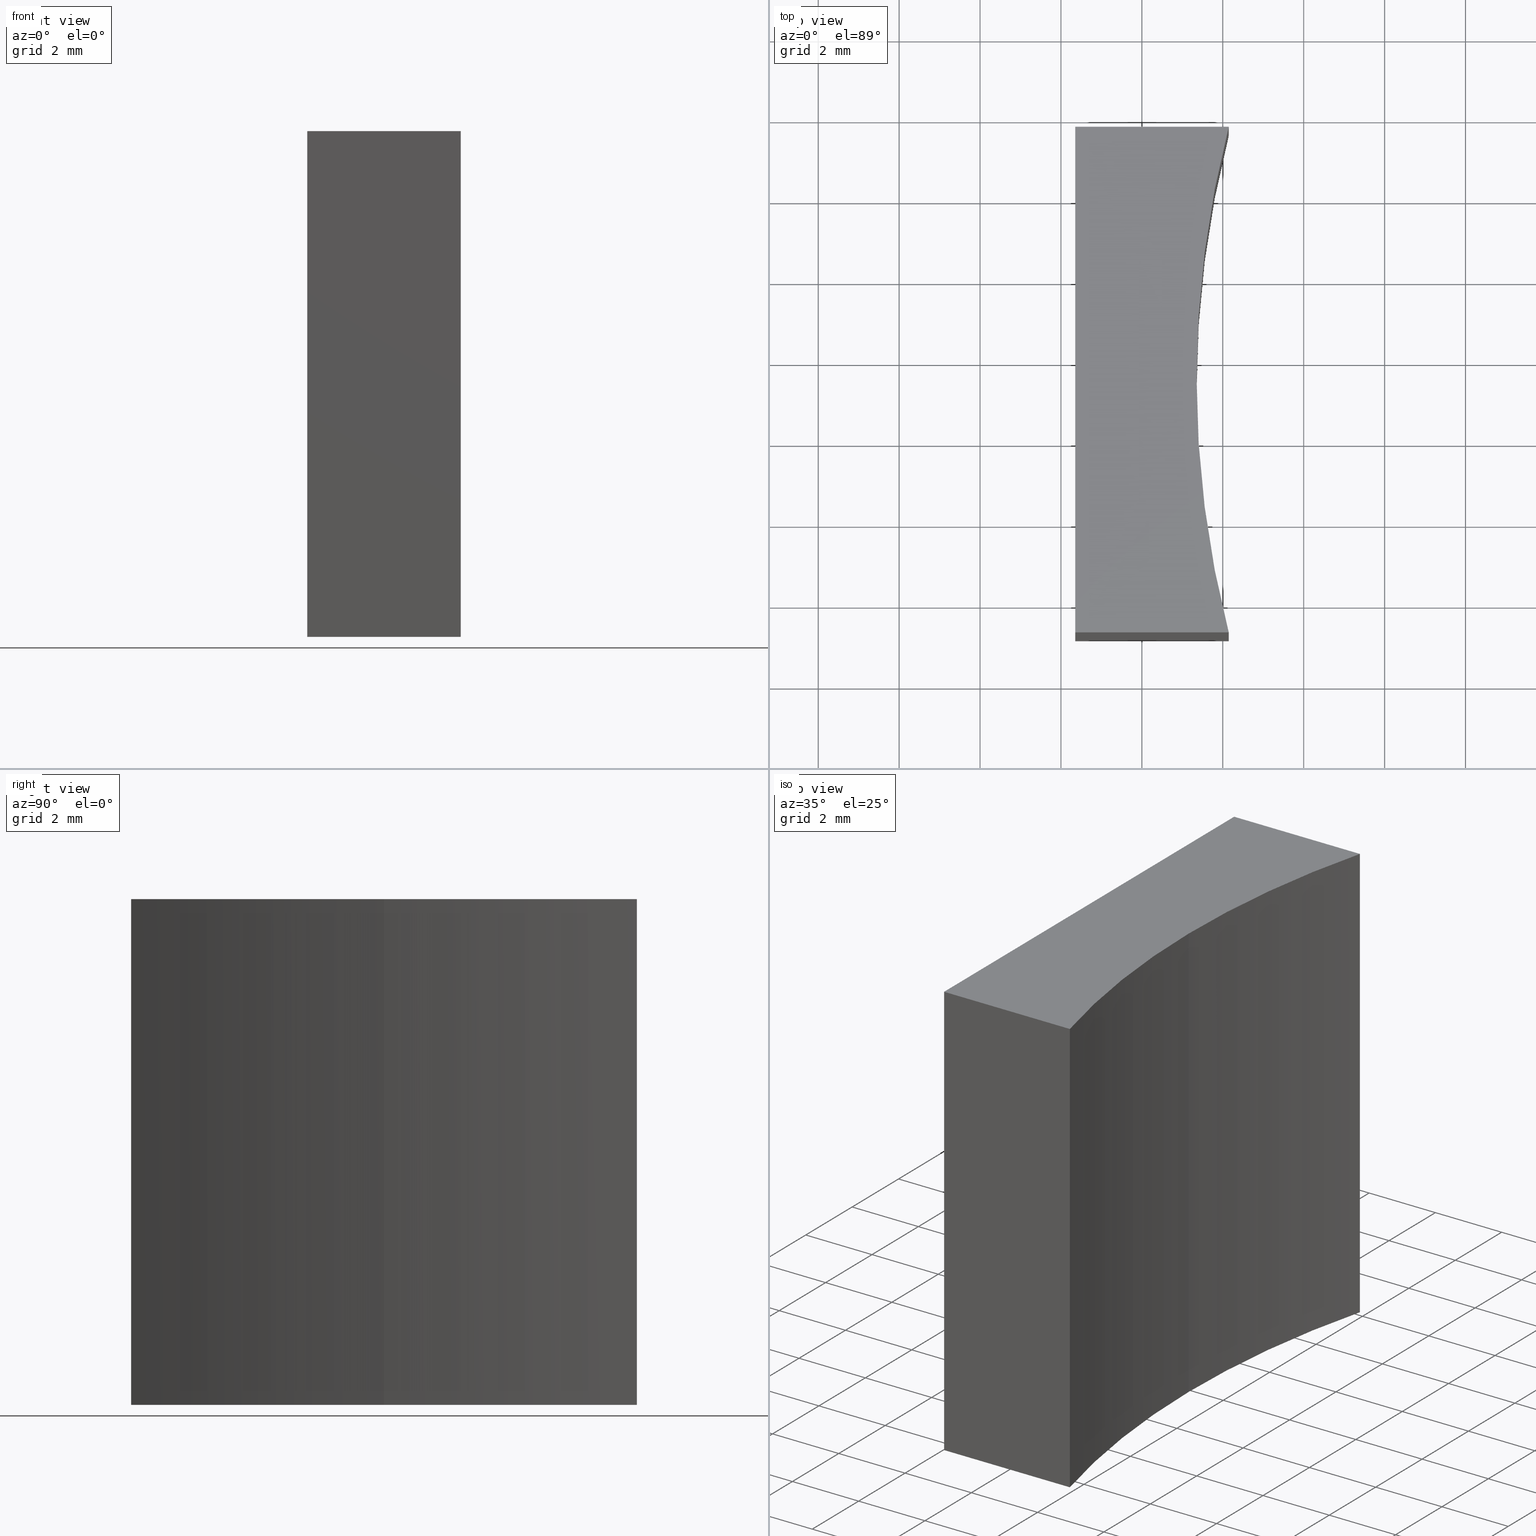
[diagram: canonical four-view strip — front | top / right | iso, engineering-drawing reading convention]
A machine part, canonical four-view strip (front | top / right | iso — engineering-drawing reading convention). The complete STEP part file that produces these views, byte-faithful:
ISO-10303-21;
HEADER;
FILE_DESCRIPTION (( 'STEP AP214' ),
    '1' );
FILE_NAME ('280004.STEP',
    '2019-08-08T01:51:03',
    ( '' ),
    ( '' ),
    'SwSTEP 2.0',
    'SolidWorks 2016',
    '' );
FILE_SCHEMA (( 'AUTOMOTIVE_DESIGN' ));
ENDSEC;

DATA;
#1 = VERTEX_POINT ( 'NONE', #205 ) ;
#2 = CYLINDRICAL_SURFACE ( 'NONE', #114, 24.99999999999996800 ) ;
#3 = ORIENTED_EDGE ( 'NONE', *, *, #163, .T. ) ;
#4 = AXIS2_PLACEMENT_3D ( 'NONE', #96, #100, #116 ) ;
#5 = EDGE_CURVE ( 'NONE', #148, #63, #108, .T. ) ;
#6 = ORIENTED_EDGE ( 'NONE', *, *, #234, .F. ) ;
#7 = CARTESIAN_POINT ( 'NONE',  ( 146.1474219018447200, 27.17896463388354900, 12.50000000000000000 ) ) ;
#8 = EDGE_LOOP ( 'NONE', ( #152, #190, #146, #3, #221 ) ) ;
#9 = DIRECTION ( 'NONE',  ( -0.0000000000000000000, -1.000000000000000000, -0.0000000000000000000 ) ) ;
#10 = CARTESIAN_POINT ( 'NONE',  ( 146.1474219018447200, 27.17896463388355200, 0.0000000000000000000 ) ) ;
#11 = DIRECTION ( 'NONE',  ( 0.0000000000000000000, 0.0000000000000000000, 1.000000000000000000 ) ) ;
#12 = ORIENTED_EDGE ( 'NONE', *, *, #22, .T. ) ;
#13 = ADVANCED_FACE ( 'NONE', ( #28 ), #161, .F. ) ;
#14 = FILL_AREA_STYLE_COLOUR ( '', #15 ) ;
#15 = COLOUR_RGB ( '',1.000000000000000000, 1.000000000000000000, 1.000000000000000000 ) ;
#16 = DIRECTION ( 'NONE',  ( 1.000000000000000000, 0.0000000000000000000, 0.0000000000000000000 ) ) ;
#17 = DIRECTION ( 'NONE',  ( 0.0000000000000000000, 0.0000000000000000000, 1.000000000000000000 ) ) ;
#18 = ORIENTED_EDGE ( 'NONE', *, *, #50, .T. ) ;
#19 = LINE ( 'NONE', #182, #33 ) ;
#20 = STYLED_ITEM ( 'NONE', ( #59 ), #219 ) ;
#21 = PRODUCT ( '280004', '280004', '', ( #31 ) ) ;
#22 = EDGE_CURVE ( 'NONE', #131, #127, #37, .T. ) ;
#23 = EDGE_LOOP ( 'NONE', ( #99, #157, #201, #236 ) ) ;
#24 = PLANE ( 'NONE',  #126 ) ;
#25 = VECTOR ( 'NONE', #167, 1000.000000000000000 ) ;
#26 = CARTESIAN_POINT ( 'NONE',  ( 170.3535678156410400, 33.42896463388354500, 12.50000000000000000 ) ) ;
#27 = AXIS2_PLACEMENT_3D ( 'NONE', #75, #118, #200 ) ;
#28 = FACE_OUTER_BOUND ( 'NONE', #53, .T. ) ;
#29 = CARTESIAN_POINT ( 'NONE',  ( 170.3535678156410400, 33.42896463388354500, 12.50000000000000000 ) ) ;
#30 = FILL_AREA_STYLE_COLOUR ( '', #55 ) ;
#31 = PRODUCT_CONTEXT ( 'NONE', #154, 'mechanical' ) ;
#32 = SURFACE_STYLE_USAGE ( .BOTH. , #218 ) ;
#33 = VECTOR ( 'NONE', #229, 1000.000000000000000 ) ;
#34 = AXIS2_PLACEMENT_3D ( 'NONE', #82, #145, #175 ) ;
#35 = LINE ( 'NONE', #110, #134 ) ;
#36 = VERTEX_POINT ( 'NONE', #42 ) ;
#37 = LINE ( 'NONE', #125, #124 ) ;
#38 = UNCERTAINTY_MEASURE_WITH_UNIT (LENGTH_MEASURE( 1.000000000000000100E-005 ), #98, 'distance_accuracy_value', 'NONE');
#39 = PRESENTATION_LAYER_ASSIGNMENT (  '', '', ( #20 ) ) ;
#40 = ORIENTED_EDGE ( 'NONE', *, *, #204, .T. ) ;
#41 = SURFACE_STYLE_FILL_AREA ( #97 ) ;
#42 = CARTESIAN_POINT ( 'NONE',  ( 146.1474219018447200, 27.17896463388355200, 12.50000000000000000 ) ) ;
#43 = DIRECTION ( 'NONE',  ( -1.000000000000000000, 0.0000000000000000000, 0.0000000000000000000 ) ) ;
#44 =( GEOMETRIC_REPRESENTATION_CONTEXT ( 3 ) GLOBAL_UNCERTAINTY_ASSIGNED_CONTEXT ( ( #38 ) ) GLOBAL_UNIT_ASSIGNED_CONTEXT ( ( #98, #185, #95 ) ) REPRESENTATION_CONTEXT ( 'NONE', 'WORKASPACE' ) );
#45 = VERTEX_POINT ( 'NONE', #64 ) ;
#46 = PLANE ( 'NONE',  #177 ) ;
#47 = PRODUCT_DEFINITION_SHAPE ( 'NONE', 'NONE',  #189 ) ;
#48 = CARTESIAN_POINT ( 'NONE',  ( 142.3535678156410400, 39.67896463388353800, 12.50000000000000000 ) ) ;
#49 = VECTOR ( 'NONE', #225, 1000.000000000000000 ) ;
#50 = EDGE_CURVE ( 'NONE', #36, #173, #212, .T. ) ;
#51 = DIRECTION ( 'NONE',  ( 0.0000000000000000000, -0.0000000000000000000, -1.000000000000000000 ) ) ;
#52 = DIRECTION ( 'NONE',  ( -0.0000000000000000000, -0.0000000000000000000, -1.000000000000000000 ) ) ;
#53 = EDGE_LOOP ( 'NONE', ( #57, #187, #105, #40 ) ) ;
#54 = ADVANCED_FACE ( 'NONE', ( #104 ), #2, .F. ) ;
#55 = COLOUR_RGB ( '',1.000000000000000000, 1.000000000000000000, 1.000000000000000000 ) ;
#56 = LINE ( 'NONE', #67, #25 ) ;
#57 = ORIENTED_EDGE ( 'NONE', *, *, #169, .T. ) ;
#58 =( LENGTH_UNIT ( ) NAMED_UNIT ( * ) SI_UNIT ( .MILLI., .METRE. ) );
#59 = PRESENTATION_STYLE_ASSIGNMENT (( #155 ) ) ;
#60 = VERTEX_POINT ( 'NONE', #66 ) ;
#61 = STYLED_ITEM ( 'NONE', ( #150 ), #156 ) ;
#62 = EDGE_CURVE ( 'NONE', #148, #36, #202, .T. ) ;
#63 = VERTEX_POINT ( 'NONE', #228 ) ;
#64 = CARTESIAN_POINT ( 'NONE',  ( 146.1474219018447200, 39.67896463388353800, 12.50000000000000000 ) ) ;
#65 = DIRECTION ( 'NONE',  ( -0.0000000000000000000, -0.0000000000000000000, -1.000000000000000000 ) ) ;
#66 = CARTESIAN_POINT ( 'NONE',  ( 145.3535678156410700, 33.42896463388354500, 0.0000000000000000000 ) ) ;
#67 = CARTESIAN_POINT ( 'NONE',  ( 142.3535678156410400, 33.42896463388353800, 0.0000000000000000000 ) ) ;
#68 = CARTESIAN_POINT ( 'NONE',  ( 142.3535678156410400, 27.17896463388353800, 12.50000000000000000 ) ) ;
#69 = ADVANCED_FACE ( 'NONE', ( #238 ), #24, .F. ) ;
#70 = CIRCLE ( 'NONE', #132, 24.99999999999996800 ) ;
#71 = AXIS2_PLACEMENT_3D ( 'NONE', #192, #178, #210 ) ;
#72 = CARTESIAN_POINT ( 'NONE',  ( 0.0000000000000000000, 0.0000000000000000000, 0.0000000000000000000 ) ) ;
#73 = ORIENTED_EDGE ( 'NONE', *, *, #81, .F. ) ;
#74 = FILL_AREA_STYLE ('',( #14 ) ) ;
#75 = CARTESIAN_POINT ( 'NONE',  ( 170.3535678156410400, 33.42896463388354500, 12.50000000000000000 ) ) ;
#76 = ORIENTED_EDGE ( 'NONE', *, *, #204, .F. ) ;
#77 = EDGE_CURVE ( 'NONE', #1, #60, #101, .T. ) ;
#78 = VECTOR ( 'NONE', #9, 1000.000000000000000 ) ;
#79 = CLOSED_SHELL ( 'NONE', ( #213, #69, #54, #137, #13, #186, #117 ) ) ;
#80 = EDGE_CURVE ( 'NONE', #36, #1, #143, .T. ) ;
#81 = EDGE_CURVE ( 'NONE', #173, #60, #70, .T. ) ;
#82 = CARTESIAN_POINT ( 'NONE',  ( 142.3535678156410400, 33.42896463388353800, 12.50000000000000000 ) ) ;
#83 = ORIENTED_EDGE ( 'NONE', *, *, #169, .F. ) ;
#84 = DIRECTION ( 'NONE',  ( -0.0000000000000000000, -0.0000000000000000000, -1.000000000000000000 ) ) ;
#85 = FACE_OUTER_BOUND ( 'NONE', #136, .T. ) ;
#86 = CARTESIAN_POINT ( 'NONE',  ( 145.3535678156410700, 33.42896463388354500, 12.50000000000000000 ) ) ;
#87 =( GEOMETRIC_REPRESENTATION_CONTEXT ( 3 ) GLOBAL_UNCERTAINTY_ASSIGNED_CONTEXT ( ( #138 ) ) GLOBAL_UNIT_ASSIGNED_CONTEXT ( ( #198, #216, #197 ) ) REPRESENTATION_CONTEXT ( 'NONE', 'WORKASPACE' ) );
#88 = DIRECTION ( 'NONE',  ( -1.000000000000000000, -0.0000000000000000000, -0.0000000000000000000 ) ) ;
#89 = CIRCLE ( 'NONE', #4, 24.99999999999996800 ) ;
#90 = DIRECTION ( 'NONE',  ( -2.743474213652739600E-015, 1.000000000000000000, 0.0000000000000000000 ) ) ;
#91 = EDGE_CURVE ( 'NONE', #63, #173, #19, .T. ) ;
#92 = DIRECTION ( 'NONE',  ( -0.0000000000000000000, -0.0000000000000000000, -1.000000000000000000 ) ) ;
#93 = DIRECTION ( 'NONE',  ( -0.0000000000000000000, -0.0000000000000000000, -1.000000000000000000 ) ) ;
#94 = ORIENTED_EDGE ( 'NONE', *, *, #81, .T. ) ;
#95 =( NAMED_UNIT ( * ) SI_UNIT ( $, .STERADIAN. ) SOLID_ANGLE_UNIT ( ) );
#96 = CARTESIAN_POINT ( 'NONE',  ( 170.3535678156410400, 33.42896463388354500, 0.0000000000000000000 ) ) ;
#97 = FILL_AREA_STYLE ('',( #30 ) ) ;
#98 =( LENGTH_UNIT ( ) NAMED_UNIT ( * ) SI_UNIT ( .MILLI., .METRE. ) );
#99 = ORIENTED_EDGE ( 'NONE', *, *, #163, .F. ) ;
#100 = DIRECTION ( 'NONE',  ( -0.0000000000000000000, -0.0000000000000000000, -1.000000000000000000 ) ) ;
#101 = LINE ( 'NONE', #86, #232 ) ;
#102 = VERTEX_POINT ( 'NONE', #214 ) ;
#103 = EDGE_CURVE ( 'NONE', #45, #102, #188, .T. ) ;
#104 = FACE_OUTER_BOUND ( 'NONE', #176, .T. ) ;
#105 = ORIENTED_EDGE ( 'NONE', *, *, #195, .F. ) ;
#106 = ORIENTED_EDGE ( 'NONE', *, *, #80, .F. ) ;
#107 = CARTESIAN_POINT ( 'NONE',  ( 146.1474219018447200, 27.17896463388355200, 12.50000000000000000 ) ) ;
#108 = LINE ( 'NONE', #109, #49 ) ;
#109 = CARTESIAN_POINT ( 'NONE',  ( 142.3535678156410400, 27.17896463388353800, 12.50000000000000000 ) ) ;
#110 = CARTESIAN_POINT ( 'NONE',  ( 146.1474219018447200, 39.67896463388353800, 12.50000000000000000 ) ) ;
#111 = CARTESIAN_POINT ( 'NONE',  ( 146.1474219018447200, 39.67896463388353800, 0.0000000000000000000 ) ) ;
#112 = CARTESIAN_POINT ( 'NONE',  ( 146.1474219018447200, 27.17896463388354900, 12.50000000000000000 ) ) ;
#113 = DIRECTION ( 'NONE',  ( 0.0000000000000000000, -1.000000000000000000, 0.0000000000000000000 ) ) ;
#114 = AXIS2_PLACEMENT_3D ( 'NONE', #164, #65, #43 ) ;
#115 = VECTOR ( 'NONE', #142, 1000.000000000000000 ) ;
#116 = DIRECTION ( 'NONE',  ( 1.000000000000000000, 0.0000000000000000000, 0.0000000000000000000 ) ) ;
#117 = ADVANCED_FACE ( 'NONE', ( #160 ), #166, .F. ) ;
#118 = DIRECTION ( 'NONE',  ( -0.0000000000000000000, -0.0000000000000000000, -1.000000000000000000 ) ) ;
#119 = EDGE_CURVE ( 'NONE', #45, #131, #35, .T. ) ;
#120 = EDGE_LOOP ( 'NONE', ( #220, #83, #140, #6, #73 ) ) ;
#121 = LINE ( 'NONE', #129, #184 ) ;
#122 = ORIENTED_EDGE ( 'NONE', *, *, #103, .F. ) ;
#123 = ORIENTED_EDGE ( 'NONE', *, *, #5, .T. ) ;
#124 = VECTOR ( 'NONE', #128, 1000.000000000000000 ) ;
#125 = CARTESIAN_POINT ( 'NONE',  ( 142.3535678156410400, 39.67896463388353800, 0.0000000000000000000 ) ) ;
#126 = AXIS2_PLACEMENT_3D ( 'NONE', #112, #90, #179 ) ;
#127 = VERTEX_POINT ( 'NONE', #165 ) ;
#128 = DIRECTION ( 'NONE',  ( -1.000000000000000000, -0.0000000000000000000, -0.0000000000000000000 ) ) ;
#129 = CARTESIAN_POINT ( 'NONE',  ( 142.3535678156410400, 39.67896463388353800, 12.50000000000000000 ) ) ;
#130 = DIRECTION ( 'NONE',  ( -0.0000000000000000000, -0.0000000000000000000, -1.000000000000000000 ) ) ;
#131 = VERTEX_POINT ( 'NONE', #111 ) ;
#132 = AXIS2_PLACEMENT_3D ( 'NONE', #194, #130, #233 ) ;
#133 = DIRECTION ( 'NONE',  ( 1.000000000000000000, 0.0000000000000000000, -0.0000000000000000000 ) ) ;
#134 = VECTOR ( 'NONE', #92, 1000.000000000000000 ) ;
#135 = SURFACE_SIDE_STYLE ('',( #162 ) ) ;
#136 = EDGE_LOOP ( 'NONE', ( #12, #76, #122, #168 ) ) ;
#137 = ADVANCED_FACE ( 'NONE', ( #85 ), #46, .F. ) ;
#138 = UNCERTAINTY_MEASURE_WITH_UNIT (LENGTH_MEASURE( 1.000000000000000100E-005 ), #198, 'distance_accuracy_value', 'NONE');
#139 = FACE_OUTER_BOUND ( 'NONE', #23, .T. ) ;
#140 = ORIENTED_EDGE ( 'NONE', *, *, #22, .F. ) ;
#141 = AXIS2_PLACEMENT_3D ( 'NONE', #26, #11, #133 ) ;
#142 = DIRECTION ( 'NONE',  ( 1.000000000000000000, 2.743474213652739600E-015, -0.0000000000000000000 ) ) ;
#143 = CIRCLE ( 'NONE', #144, 24.99999999999996800 ) ;
#144 = AXIS2_PLACEMENT_3D ( 'NONE', #29, #52, #149 ) ;
#145 = DIRECTION ( 'NONE',  ( 1.000000000000000000, 0.0000000000000000000, 0.0000000000000000000 ) ) ;
#146 = ORIENTED_EDGE ( 'NONE', *, *, #80, .T. ) ;
#147 = DIRECTION ( 'NONE',  ( -0.0000000000000000000, -0.0000000000000000000, -1.000000000000000000 ) ) ;
#148 = VERTEX_POINT ( 'NONE', #68 ) ;
#149 = DIRECTION ( 'NONE',  ( 1.000000000000000000, 0.0000000000000000000, 0.0000000000000000000 ) ) ;
#150 = PRESENTATION_STYLE_ASSIGNMENT (( #32 ) ) ;
#151 = DIRECTION ( 'NONE',  ( 1.000000000000000000, 0.0000000000000000000, 0.0000000000000000000 ) ) ;
#152 = ORIENTED_EDGE ( 'NONE', *, *, #195, .T. ) ;
#153 = CARTESIAN_POINT ( 'NONE',  ( 142.3535678156410400, 27.17896463388353800, 12.50000000000000000 ) ) ;
#154 = APPLICATION_CONTEXT ( 'automotive_design' ) ;
#155 = SURFACE_STYLE_USAGE ( .BOTH. , #135 ) ;
#156 = ADVANCED_BREP_SHAPE_REPRESENTATION ( '280004', ( #219, #239 ), #208 ) ;
#157 = ORIENTED_EDGE ( 'NONE', *, *, #77, .T. ) ;
#158 = LINE ( 'NONE', #153, #78 ) ;
#159 = PRODUCT_DEFINITION_CONTEXT ( 'detailed design', #170, 'design' ) ;
#160 = FACE_OUTER_BOUND ( 'NONE', #120, .T. ) ;
#161 = PLANE ( 'NONE',  #34 ) ;
#162 = SURFACE_STYLE_FILL_AREA ( #74 ) ;
#163 = EDGE_CURVE ( 'NONE', #1, #45, #226, .T. ) ;
#164 = CARTESIAN_POINT ( 'NONE',  ( 170.3535678156410400, 33.42896463388354500, 12.50000000000000000 ) ) ;
#165 = CARTESIAN_POINT ( 'NONE',  ( 142.3535678156410400, 39.67896463388353800, 0.0000000000000000000 ) ) ;
#166 = PLANE ( 'NONE',  #71 ) ;
#167 = DIRECTION ( 'NONE',  ( -0.0000000000000000000, -1.000000000000000000, -0.0000000000000000000 ) ) ;
#168 = ORIENTED_EDGE ( 'NONE', *, *, #119, .T. ) ;
#169 = EDGE_CURVE ( 'NONE', #127, #63, #56, .T. ) ;
#170 = APPLICATION_CONTEXT ( 'automotive_design' ) ;
#171 = APPLICATION_PROTOCOL_DEFINITION ( 'draft international standard', 'automotive_design', 1998, #170 ) ;
#172 = APPLICATION_PROTOCOL_DEFINITION ( 'draft international standard', 'automotive_design', 1998, #154 ) ;
#173 = VERTEX_POINT ( 'NONE', #10 ) ;
#174 = EDGE_LOOP ( 'NONE', ( #207, #191, #211, #123 ) ) ;
#175 = DIRECTION ( 'NONE',  ( 0.0000000000000000000, 0.0000000000000000000, -1.000000000000000000 ) ) ;
#176 = EDGE_LOOP ( 'NONE', ( #215, #106, #18, #94 ) ) ;
#177 = AXIS2_PLACEMENT_3D ( 'NONE', #231, #113, #51 ) ;
#178 = DIRECTION ( 'NONE',  ( 0.0000000000000000000, 0.0000000000000000000, 1.000000000000000000 ) ) ;
#179 = DIRECTION ( 'NONE',  ( -1.000000000000000000, -2.743474213652739600E-015, 0.0000000000000000000 ) ) ;
#180 = DIRECTION ( 'NONE',  ( -0.0000000000000000000, -0.0000000000000000000, -1.000000000000000000 ) ) ;
#181 = FACE_OUTER_BOUND ( 'NONE', #8, .T. ) ;
#182 = CARTESIAN_POINT ( 'NONE',  ( 146.1474219018447200, 27.17896463388354900, 0.0000000000000000000 ) ) ;
#183 =( NAMED_UNIT ( * ) PLANE_ANGLE_UNIT ( ) SI_UNIT ( $, .RADIAN. ) );
#184 = VECTOR ( 'NONE', #180, 1000.000000000000000 ) ;
#185 =( NAMED_UNIT ( * ) PLANE_ANGLE_UNIT ( ) SI_UNIT ( $, .RADIAN. ) );
#186 = ADVANCED_FACE ( 'NONE', ( #181 ), #209, .T. ) ;
#187 = ORIENTED_EDGE ( 'NONE', *, *, #5, .F. ) ;
#188 = LINE ( 'NONE', #48, #224 ) ;
#189 = PRODUCT_DEFINITION ( 'δ֪', '', #230, #159 ) ;
#190 = ORIENTED_EDGE ( 'NONE', *, *, #62, .T. ) ;
#191 = ORIENTED_EDGE ( 'NONE', *, *, #50, .F. ) ;
#192 = CARTESIAN_POINT ( 'NONE',  ( 170.3535678156410400, 33.42896463388354500, 0.0000000000000000000 ) ) ;
#193 = VECTOR ( 'NONE', #84, 1000.000000000000000 ) ;
#194 = CARTESIAN_POINT ( 'NONE',  ( 170.3535678156410400, 33.42896463388354500, 0.0000000000000000000 ) ) ;
#195 = EDGE_CURVE ( 'NONE', #102, #148, #158, .T. ) ;
#196 = SHAPE_DEFINITION_REPRESENTATION ( #47, #156 ) ;
#197 =( NAMED_UNIT ( * ) SI_UNIT ( $, .STERADIAN. ) SOLID_ANGLE_UNIT ( ) );
#198 =( LENGTH_UNIT ( ) NAMED_UNIT ( * ) SI_UNIT ( .MILLI., .METRE. ) );
#199 = PRESENTATION_LAYER_ASSIGNMENT (  '', '', ( #61 ) ) ;
#200 = DIRECTION ( 'NONE',  ( -1.000000000000000000, 0.0000000000000000000, 0.0000000000000000000 ) ) ;
#201 = ORIENTED_EDGE ( 'NONE', *, *, #234, .T. ) ;
#202 = LINE ( 'NONE', #7, #115 ) ;
#203 = MECHANICAL_DESIGN_GEOMETRIC_PRESENTATION_REPRESENTATION (  '', ( #20 ), #44 ) ;
#204 = EDGE_CURVE ( 'NONE', #102, #127, #121, .T. ) ;
#205 = CARTESIAN_POINT ( 'NONE',  ( 145.3535678156410700, 33.42896463388354500, 12.50000000000000000 ) ) ;
#206 = CYLINDRICAL_SURFACE ( 'NONE', #27, 24.99999999999996800 ) ;
#207 = ORIENTED_EDGE ( 'NONE', *, *, #91, .T. ) ;
#208 =( GEOMETRIC_REPRESENTATION_CONTEXT ( 3 ) GLOBAL_UNCERTAINTY_ASSIGNED_CONTEXT ( ( #227 ) ) GLOBAL_UNIT_ASSIGNED_CONTEXT ( ( #58, #183, #237 ) ) REPRESENTATION_CONTEXT ( 'NONE', 'WORKASPACE' ) );
#209 = PLANE ( 'NONE',  #141 ) ;
#210 = DIRECTION ( 'NONE',  ( 1.000000000000000000, 0.0000000000000000000, -0.0000000000000000000 ) ) ;
#211 = ORIENTED_EDGE ( 'NONE', *, *, #62, .F. ) ;
#212 = LINE ( 'NONE', #107, #193 ) ;
#213 = ADVANCED_FACE ( 'NONE', ( #139 ), #206, .F. ) ;
#214 = CARTESIAN_POINT ( 'NONE',  ( 142.3535678156410400, 39.67896463388353800, 12.50000000000000000 ) ) ;
#215 = ORIENTED_EDGE ( 'NONE', *, *, #77, .F. ) ;
#216 =( NAMED_UNIT ( * ) PLANE_ANGLE_UNIT ( ) SI_UNIT ( $, .RADIAN. ) );
#217 = AXIS2_PLACEMENT_3D ( 'NONE', #235, #93, #151 ) ;
#218 = SURFACE_SIDE_STYLE ('',( #41 ) ) ;
#219 = MANIFOLD_SOLID_BREP ( '͹̨-����1', #79 ) ;
#220 = ORIENTED_EDGE ( 'NONE', *, *, #91, .F. ) ;
#221 = ORIENTED_EDGE ( 'NONE', *, *, #103, .T. ) ;
#222 = MECHANICAL_DESIGN_GEOMETRIC_PRESENTATION_REPRESENTATION (  '', ( #61 ), #87 ) ;
#223 = PRODUCT_RELATED_PRODUCT_CATEGORY ( 'part', '', ( #21 ) ) ;
#224 = VECTOR ( 'NONE', #88, 1000.000000000000000 ) ;
#225 = DIRECTION ( 'NONE',  ( -0.0000000000000000000, -0.0000000000000000000, -1.000000000000000000 ) ) ;
#226 = CIRCLE ( 'NONE', #217, 24.99999999999996800 ) ;
#227 = UNCERTAINTY_MEASURE_WITH_UNIT (LENGTH_MEASURE( 1.000000000000000100E-005 ), #58, 'distance_accuracy_value', 'NONE');
#228 = CARTESIAN_POINT ( 'NONE',  ( 142.3535678156410400, 27.17896463388353800, 0.0000000000000000000 ) ) ;
#229 = DIRECTION ( 'NONE',  ( 1.000000000000000000, 2.743474213652739600E-015, -0.0000000000000000000 ) ) ;
#230 = PRODUCT_DEFINITION_FORMATION_WITH_SPECIFIED_SOURCE ( '�κ�', '', #21, .NOT_KNOWN. ) ;
#231 = CARTESIAN_POINT ( 'NONE',  ( 142.3535678156410400, 39.67896463388353800, 12.50000000000000000 ) ) ;
#232 = VECTOR ( 'NONE', #147, 1000.000000000000000 ) ;
#233 = DIRECTION ( 'NONE',  ( 1.000000000000000000, 0.0000000000000000000, 0.0000000000000000000 ) ) ;
#234 = EDGE_CURVE ( 'NONE', #60, #131, #89, .T. ) ;
#235 = CARTESIAN_POINT ( 'NONE',  ( 170.3535678156410400, 33.42896463388354500, 12.50000000000000000 ) ) ;
#236 = ORIENTED_EDGE ( 'NONE', *, *, #119, .F. ) ;
#237 =( NAMED_UNIT ( * ) SI_UNIT ( $, .STERADIAN. ) SOLID_ANGLE_UNIT ( ) );
#238 = FACE_OUTER_BOUND ( 'NONE', #174, .T. ) ;
#239 = AXIS2_PLACEMENT_3D ( 'NONE', #72, #17, #16 ) ;
ENDSEC;
END-ISO-10303-21;
